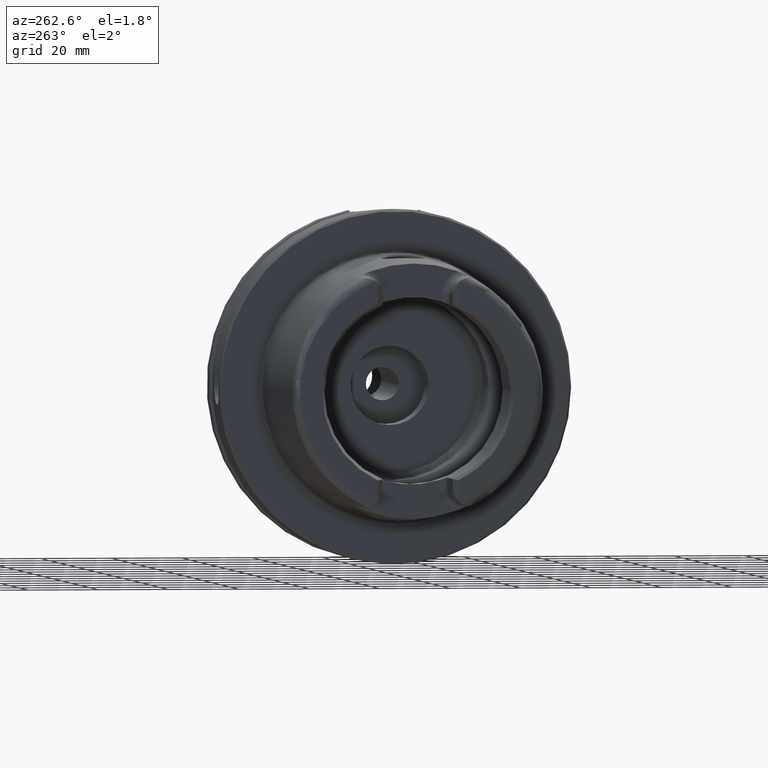
[diagram: clean part render]
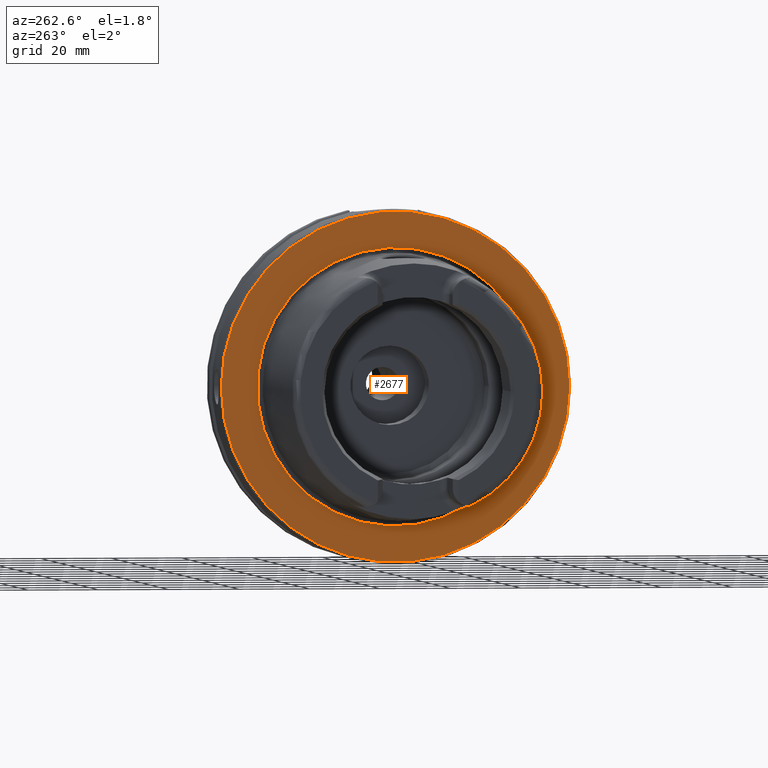
[diagram: same view with one face highlighted and labeled with its STEP entity id]
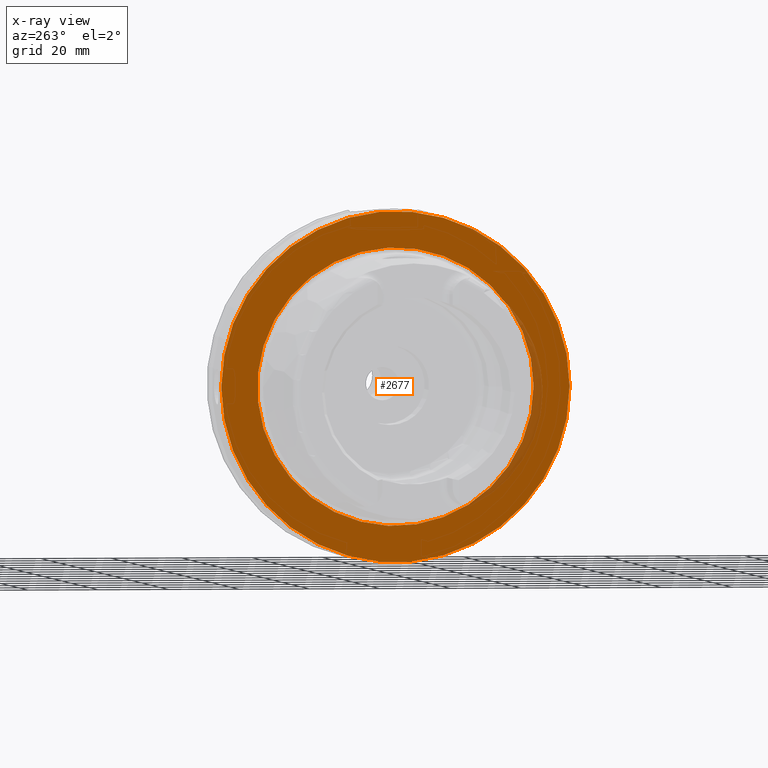
[diagram: x-ray of the same camera — body ghosted, the highlighted face saturated]
A machine part, auxiliary view. The second image highlights one B-rep face of the part: STEP entity #2677.
The next image is the same camera in x-ray: the body ghosted, the highlighted face saturated — about 5% of this face is hidden behind the body in this view.
In plain terms, the highlighted planar face has unit normal (-1, 0, 0).
Its self-contained STEP definition (entity closure, byte-faithful):
#189=FACE_BOUND('',#558,.T.);
#232=PLANE('',#3043);
#392=FACE_OUTER_BOUND('',#557,.T.);
#557=EDGE_LOOP('',(#2318));
#558=EDGE_LOOP('',(#2319));
#1023=CIRCLE('',#3042,39.2747800249997);
#1024=CIRCLE('',#3044,49.5);
#1266=VERTEX_POINT('',#5459);
#1267=VERTEX_POINT('',#5463);
#1630=EDGE_CURVE('',#1266,#1266,#1023,.T.);
#1631=EDGE_CURVE('',#1267,#1267,#1024,.T.);
#2318=ORIENTED_EDGE('',*,*,#1631,.F.);
#2319=ORIENTED_EDGE('',*,*,#1630,.T.);
#2677=ADVANCED_FACE('',(#392,#189),#232,.T.);
#3042=AXIS2_PLACEMENT_3D('',#5461,#3731,#3732);
#3043=AXIS2_PLACEMENT_3D('',#5462,#3733,#3734);
#3044=AXIS2_PLACEMENT_3D('',#5464,#3735,#3736);
#3731=DIRECTION('center_axis',(1.,0.,0.));
#3732=DIRECTION('ref_axis',(0.,0.,-1.));
#3733=DIRECTION('center_axis',(-1.,0.,0.));
#3734=DIRECTION('ref_axis',(0.,0.,1.));
#3735=DIRECTION('center_axis',(1.,0.,0.));
#3736=DIRECTION('ref_axis',(0.,0.,-1.));
#5459=CARTESIAN_POINT('',(-1.11889664200504E-15,-39.2747800249997,-4.80977336448322E-15));
#5461=CARTESIAN_POINT('Origin',(0.,0.,0.));
#5462=CARTESIAN_POINT('Origin',(0.,49.5,0.));
#5463=CARTESIAN_POINT('',(1.2490009027033E-15,-49.5,-6.0620016557794E-15));
#5464=CARTESIAN_POINT('Origin',(0.,0.,0.));